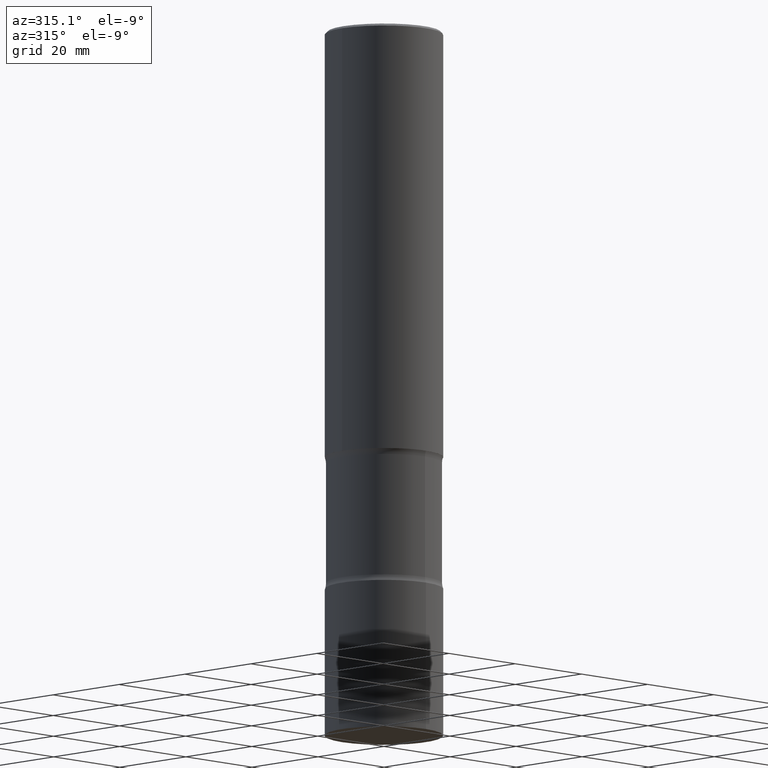
[diagram: clean part render]
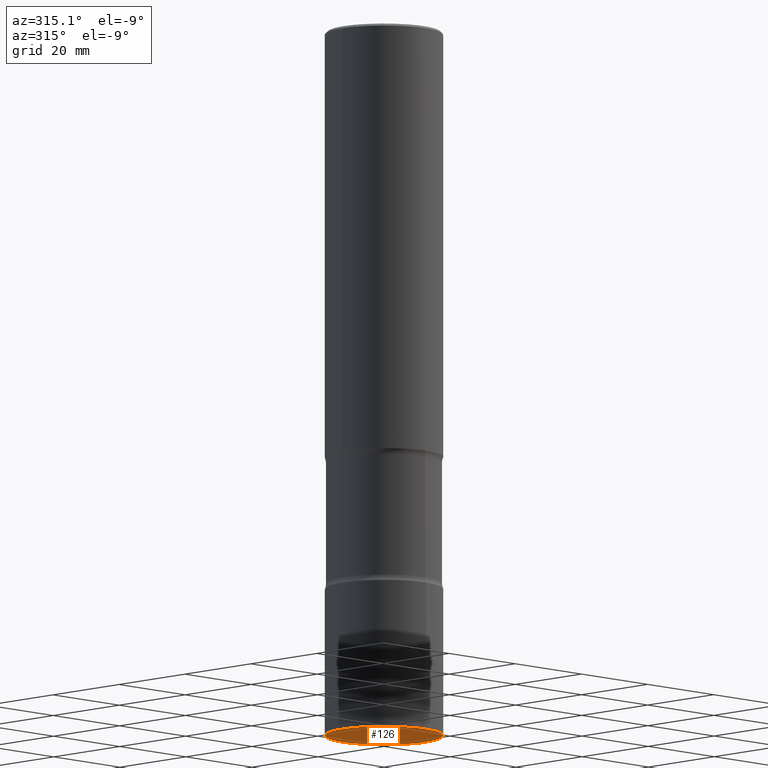
[diagram: same view with one face highlighted and labeled with its STEP entity id]
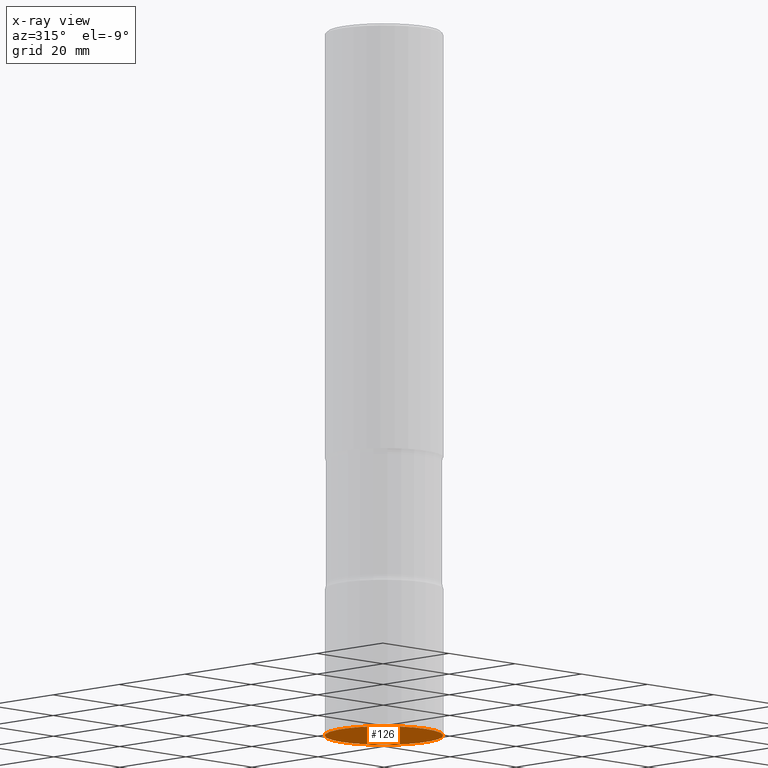
[diagram: x-ray of the same camera — body ghosted, the highlighted face saturated]
A machine part, auxiliary view. The second image highlights one B-rep face of the part: STEP entity #126.
The next image is the same camera in x-ray: the body ghosted, the highlighted face saturated — about 0% of this face is hidden behind the body in this view.
In plain terms, the highlighted planar face has unit normal (0, -0, -1).
Its self-contained STEP definition (entity closure, byte-faithful):
#14 = CARTESIAN_POINT ( 'NONE',  ( 3.552713678800631091E-15, 0.4999999999999790168, -6.000000000000002665 ) ) ;
#31 = PLANE ( 'NONE',  #114 ) ;
#36 = EDGE_CURVE ( 'NONE', #200, #465, #215, .T. ) ;
#59 = CARTESIAN_POINT ( 'NONE',  ( -3.491481338842986233E-15, -0.5000000000000209832, -5.999999999999998224 ) ) ;
#64 = CARTESIAN_POINT ( 'NONE',  ( 5.516144398293378327E-29, -3.406175840264733616E-14, -5.999999999999999112 ) ) ;
#66 = AXIS2_PLACEMENT_3D ( 'NONE', #437, #91, #243 ) ;
#91 = DIRECTION ( 'NONE',  ( -2.444607917511519987E-29, 3.492714180422504776E-15, 1.000000000000000000 ) ) ;
#95 = CARTESIAN_POINT ( 'NONE',  ( 1.466764750506912217E-28, -2.095628508253502945E-14, -6.000000000000000888 ) ) ;
#114 = AXIS2_PLACEMENT_3D ( 'NONE', #64, #211, #261 ) ;
#126 = ADVANCED_FACE ( 'NONE', ( #413 ), #31, .T. ) ;
#171 = AXIS2_PLACEMENT_3D ( 'NONE', #95, #488, #443 ) ;
#172 = EDGE_LOOP ( 'NONE', ( #470, #507 ) ) ;
#200 = VERTEX_POINT ( 'NONE', #59 ) ;
#211 = DIRECTION ( 'NONE',  ( 2.444607917511519987E-29, -3.492714180422504382E-15, -1.000000000000000000 ) ) ;
#215 = CIRCLE ( 'NONE', #66, 0.5000000000000000000 ) ;
#243 = DIRECTION ( 'NONE',  ( -6.982962677686265922E-15, -1.000000000000000000, 4.370956789862821150E-15 ) ) ;
#261 = DIRECTION ( 'NONE',  ( 6.982962677686265922E-15, 1.000000000000000000, -3.492714180422504382E-15 ) ) ;
#283 = EDGE_CURVE ( 'NONE', #465, #200, #389, .T. ) ;
#389 = CIRCLE ( 'NONE', #171, 0.5000000000000000000 ) ;
#413 = FACE_OUTER_BOUND ( 'NONE', #172, .T. ) ;
#437 = CARTESIAN_POINT ( 'NONE',  ( 1.466764750506912217E-28, -2.095628508253502945E-14, -6.000000000000000888 ) ) ;
#443 = DIRECTION ( 'NONE',  ( -6.982962677686265922E-15, -1.000000000000000000, 4.370956789862821150E-15 ) ) ;
#465 = VERTEX_POINT ( 'NONE', #14 ) ;
#470 = ORIENTED_EDGE ( 'NONE', *, *, #36, .F. ) ;
#488 = DIRECTION ( 'NONE',  ( -2.444607917511519987E-29, 3.492714180422504776E-15, 1.000000000000000000 ) ) ;
#507 = ORIENTED_EDGE ( 'NONE', *, *, #283, .F. ) ;